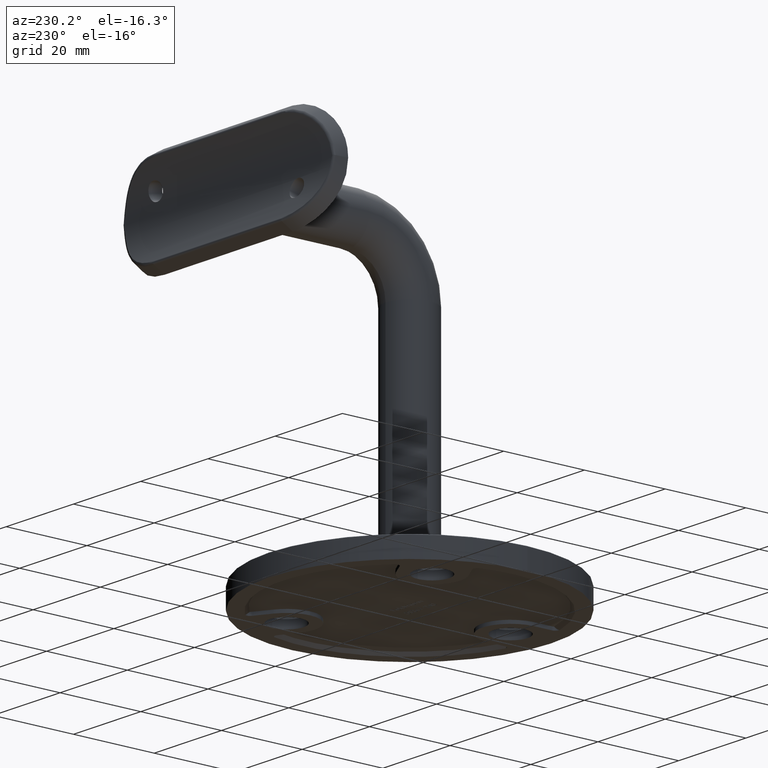
[diagram: clean part render]
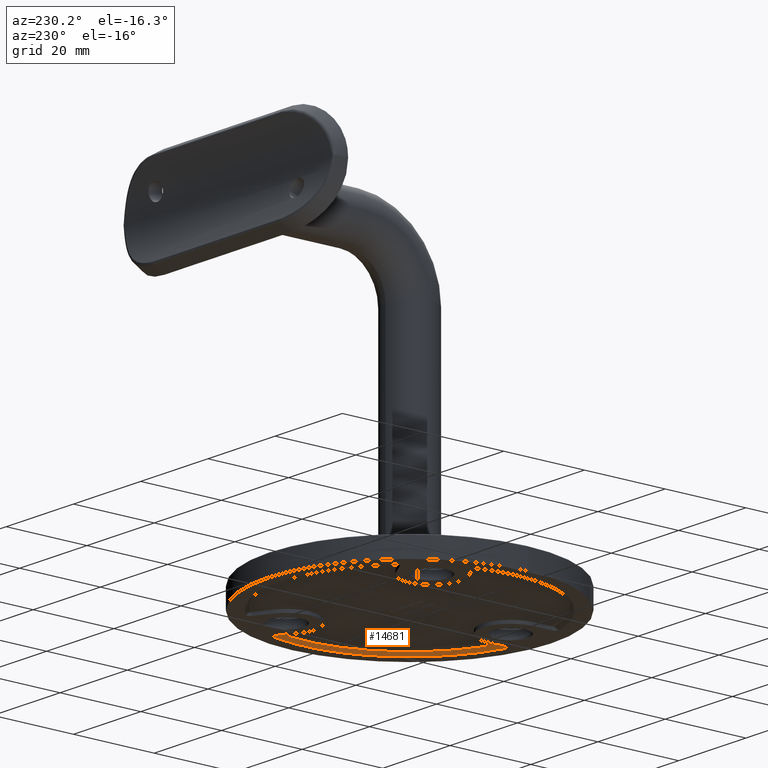
[diagram: same view with one face highlighted and labeled with its STEP entity id]
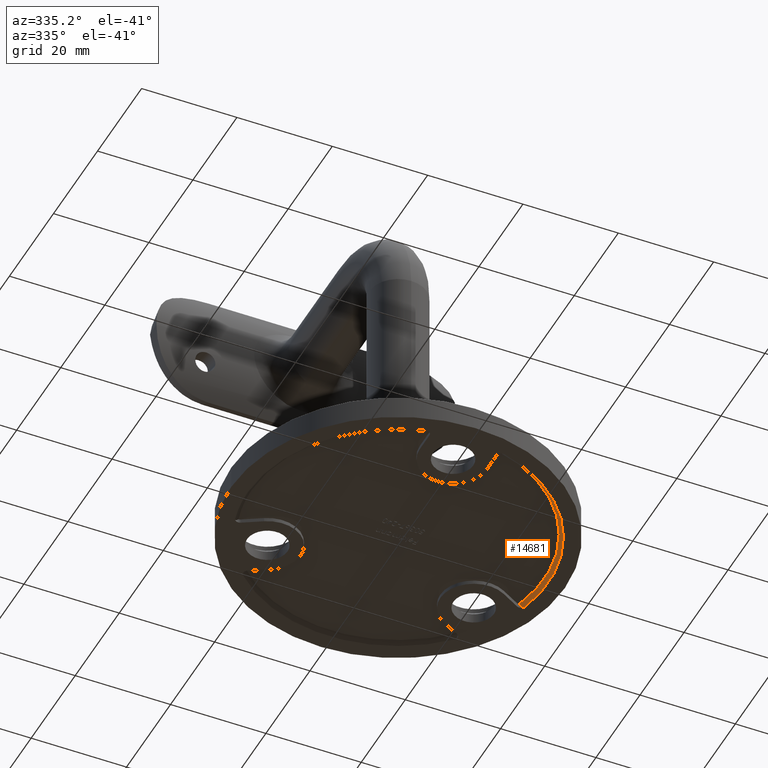
[diagram: same view with one face highlighted and labeled with its STEP entity id]
A machine part, auxiliary view. The second image highlights one B-rep face of the part: STEP entity #14681.
A second angle (auxiliary view) of the same face is appended — the face is thin or edge-on in the first view.
In plain terms, the highlighted conical surface has half-angle 45 deg.
Its self-contained STEP definition (entity closure, byte-faithful):
#267 = CARTESIAN_POINT ( 'NONE',  ( 29.41615496342425473, 8.785205015696091024, 0.8000000000000000444 ) ) ;
#791 = EDGE_CURVE ( 'NONE', #5703, #14582, #6070, .T. ) ;
#1279 = AXIS2_PLACEMENT_3D ( 'NONE', #8655, #2391, #3755 ) ;
#1411 = CARTESIAN_POINT ( 'NONE',  ( 7.198150115331644727, -30.03844352955447405, 0.6111848073515664392 ) ) ;
#1463 = CARTESIAN_POINT ( 'NONE',  ( 29.81436268504030096, 8.738968381679242725, 0.4313139632851771821 ) ) ;
#1795 = CARTESIAN_POINT ( 'NONE',  ( 0.000000000000000000, 0.000000000000000000, 0.8000000000000000444 ) ) ;
#2178 = CARTESIAN_POINT ( 'NONE',  ( 8.262295081967213406, -30.39711302045805397, 0.000000000000000000 ) ) ;
#2391 = DIRECTION ( 'NONE',  ( 0.000000000000000000, 0.000000000000000000, -1.000000000000000000 ) ) ;
#3039 = DIRECTION ( 'NONE',  ( -1.000000000000000000, 0.000000000000000000, 0.000000000000000000 ) ) ;
#3235 = ORIENTED_EDGE ( 'NONE', *, *, #16097, .F. ) ;
#3531 = B_SPLINE_CURVE_WITH_KNOTS ( 'NONE', 3,
 ( #11476, #7649, #1411, #10324, #7754, #9069, #3897, #11324, #13884, #15087 ),
 .UNSPECIFIED., .F., .F.,
 ( 4, 2, 2, 2, 4 ),
 ( 2.835233227164897850E-07, 0.0004080498071544904444, 0.0008158160909862643365, 0.001223582374818038337, 0.001631348658649814506 ),
 .UNSPECIFIED. ) ;
#3755 = DIRECTION ( 'NONE',  ( -1.000000000000000000, 0.000000000000000000, 0.000000000000000000 ) ) ;
#3855 = ORIENTED_EDGE ( 'NONE', *, *, #13158, .F. ) ;
#3897 = CARTESIAN_POINT ( 'NONE',  ( 7.735983385621981512, -30.40520115877237828, 0.1263245749348945179 ) ) ;
#3954 = CARTESIAN_POINT ( 'NONE',  ( 29.51413300441587140, 8.792358101353292099, 0.7040723595825564285 ) ) ;
#4357 = CIRCLE ( 'NONE', #8624, 30.70000000000002061 ) ;
#4529 = VERTEX_POINT ( 'NONE', #11693 ) ;
#4838 = CARTESIAN_POINT ( 'NONE',  ( 30.45581961840698781, 8.043199075682325727, 0.000000000000000000 ) ) ;
#5124 = CARTESIAN_POINT ( 'NONE',  ( 30.42046641417829989, 8.177065066165754459, -2.463658854560175662E-14 ) ) ;
#5180 = CARTESIAN_POINT ( 'NONE',  ( 30.20107687623808701, 8.501448399144798884, 0.1253971377629869433 ) ) ;
#5348 = CARTESIAN_POINT ( 'NONE',  ( 30.10826119730834449, 8.581136179668046537, 0.1928712898443520340 ) ) ;
#5703 = VERTEX_POINT ( 'NONE', #4838 ) ;
#6070 = CIRCLE ( 'NONE', #10706, 31.50000000000000711 ) ;
#6621 = CARTESIAN_POINT ( 'NONE',  ( 0.000000000000000000, 0.000000000000000000, 0.000000000000000000 ) ) ;
#7245 = B_SPLINE_CURVE_WITH_KNOTS ( 'NONE', 3,
 ( #7700, #5124, #15308, #5180, #5348, #7654, #1463, #10225, #3954, #267 ),
 .UNSPECIFIED., .F., .F.,
 ( 4, 2, 2, 2, 4 ),
 ( 2.033321149237226226E-07, 0.0004085142835621078349, 0.0008168252350092919476, 0.001225136186456476060, 0.001633447137903660173 ),
 .UNSPECIFIED. ) ;
#7649 = CARTESIAN_POINT ( 'NONE',  ( 7.142639159836567941, -29.95612281736808669, 0.7041213776191663776 ) ) ;
#7654 = CARTESIAN_POINT ( 'NONE',  ( 29.91528408505935133, 8.699487962752673553, 0.3455728616495862271 ) ) ;
#7700 = CARTESIAN_POINT ( 'NONE',  ( 30.45581961840698781, 8.043199075682325727, 0.000000000000000000 ) ) ;
#7754 = CARTESIAN_POINT ( 'NONE',  ( 7.422933663310423036, -30.25660083276316215, 0.3462699709162413431 ) ) ;
#7883 = DIRECTION ( 'NONE',  ( 0.000000000000000000, 0.000000000000000000, -1.000000000000000000 ) ) ;
#8007 = ORIENTED_EDGE ( 'NONE', *, *, #791, .T. ) ;
#8357 = EDGE_CURVE ( 'NONE', #11542, #14582, #3531, .T. ) ;
#8624 = AXIS2_PLACEMENT_3D ( 'NONE', #1795, #10579, #11817 ) ;
#8655 = CARTESIAN_POINT ( 'NONE',  ( 0.000000000000000000, 0.000000000000000000, 0.8000000000000000444 ) ) ;
#9069 = CARTESIAN_POINT ( 'NONE',  ( 7.621438267365252095, -30.36457180077522366, 0.1936652015976753072 ) ) ;
#10225 = CARTESIAN_POINT ( 'NONE',  ( 29.61480451549336124, 8.785183363900115339, 0.6096527279948157352 ) ) ;
#10324 = CARTESIAN_POINT ( 'NONE',  ( 7.338401110340024402, -30.18900834503124031, 0.4319166191875871696 ) ) ;
#10579 = DIRECTION ( 'NONE',  ( 0.000000000000000000, 0.000000000000000000, -1.000000000000000000 ) ) ;
#10706 = AXIS2_PLACEMENT_3D ( 'NONE', #6621, #7883, #3039 ) ;
#11324 = CARTESIAN_POINT ( 'NONE',  ( 7.991112029029244113, -30.44034273881523589, 0.02845490373344128701 ) ) ;
#11476 = CARTESIAN_POINT ( 'NONE',  ( 7.099866760664978571, -29.86773998783312223, 0.8000000000000000444 ) ) ;
#11542 = VERTEX_POINT ( 'NONE', #12096 ) ;
#11693 = CARTESIAN_POINT ( 'NONE',  ( 29.41615496342425473, 8.785205015696091024, 0.8000000000000000444 ) ) ;
#11817 = DIRECTION ( 'NONE',  ( -1.000000000000000000, 0.000000000000000000, 0.000000000000000000 ) ) ;
#12096 = CARTESIAN_POINT ( 'NONE',  ( 7.099866760664978571, -29.86773998783312223, 0.8000000000000000444 ) ) ;
#12649 = EDGE_LOOP ( 'NONE', ( #3855, #3235, #8007, #13241 ) ) ;
#13158 = EDGE_CURVE ( 'NONE', #4529, #11542, #4357, .T. ) ;
#13241 = ORIENTED_EDGE ( 'NONE', *, *, #8357, .F. ) ;
#13529 = CONICAL_SURFACE ( 'NONE', #1279, 30.70000000000002061, 0.7853981633974266297 ) ;
#13884 = CARTESIAN_POINT ( 'NONE',  ( 8.128792392009968282, -30.43340063165064180, -2.557870094118536164E-14 ) ) ;
#14582 = VERTEX_POINT ( 'NONE', #2178 ) ;
#14681 = ADVANCED_FACE ( 'NONE', ( #14900 ), #13529, .F. ) ;
#14900 = FACE_OUTER_BOUND ( 'NONE', #12649, .T. ) ;
#15087 = CARTESIAN_POINT ( 'NONE',  ( 8.262295081967213406, -30.39711302045805397, 0.000000000000000000 ) ) ;
#15308 = CARTESIAN_POINT ( 'NONE',  ( 30.35755347769152834, 8.299589439534212687, 0.02858005410218820638 ) ) ;
#16097 = EDGE_CURVE ( 'NONE', #5703, #4529, #7245, .T. ) ;